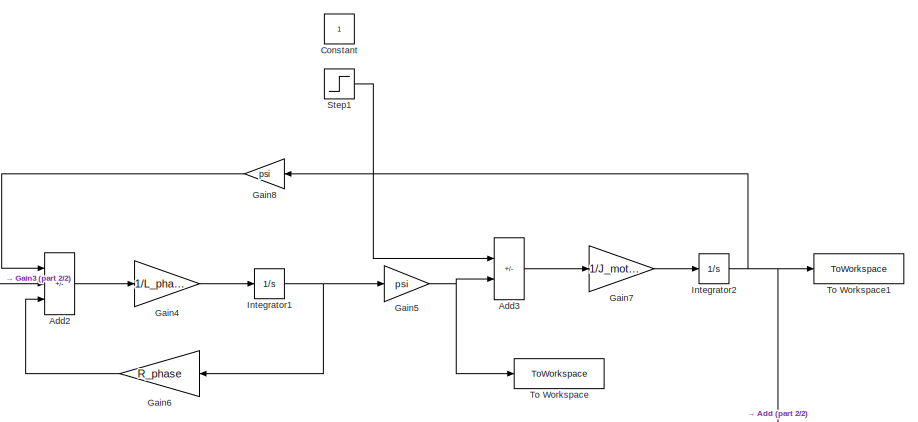
[diagram: root canvas - part 1/2, right side, full height]
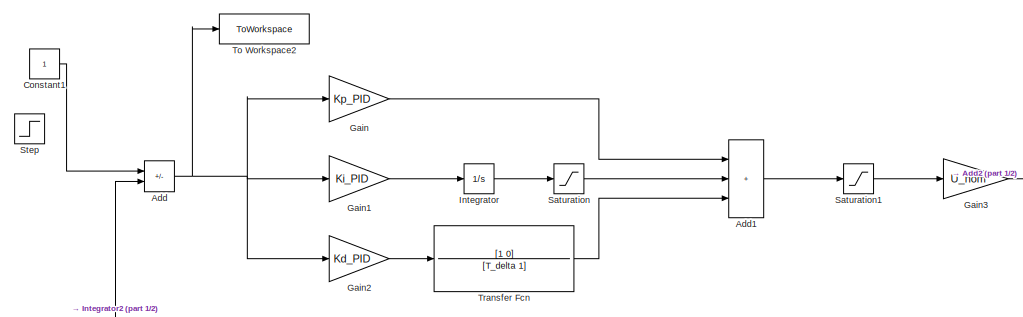
[diagram: root canvas - part 2/2, middle left region]
MODEL slx_756427c6e6b8
KIND model
CONFIG AbsTol = auto
CONFIG EnableMultiTasking = off
CONFIG FixedStep = 0.000001
CONFIG MaxStep = auto
CONFIG MinStep = auto
CONFIG RelTol = 1e-3
CONFIG SampleTimeConstraint = Unconstrained
CONFIG SolverName = FixedStepAuto
CONFIG StartTime = 0.0
CONFIG StopTime = 1.2
BLOCK [Sum] Add
  IconShape = rectangular
  Inputs = +-
  Ports = [2, 1]
BLOCK [Sum] Add1
  IconShape = rectangular
  Inputs = +++
  Ports = [3, 1]
BLOCK [Sum] Add2
  IconShape = rectangular
  Inputs = -+-
  Ports = [3, 1]
BLOCK [Sum] Add3
  IconShape = rectangular
  Inputs = -+
  Ports = [2, 1]
BLOCK [Constant] Constant
BLOCK [Constant] Constant1
BLOCK [Gain] Gain
  Gain = Kp_PID
BLOCK [Gain] Gain1
  Gain = Ki_PID
BLOCK [Gain] Gain2
  Gain = Kd_PID
BLOCK [Gain] Gain3
  Gain = U_nom
BLOCK [Gain] Gain4
  Gain = 1/L_phase
BLOCK [Gain] Gain5
  Gain = psi
BLOCK [Gain] Gain6
  Gain = R_phase
  NameLocation = top
BLOCK [Gain] Gain7
  Gain = 1/J_motor
BLOCK [Gain] Gain8
  Gain = psi
  NameLocation = top
BLOCK [Integrator] Integrator
  Ports = [1, 1]
BLOCK [Integrator] Integrator1
  Ports = [1, 1]
BLOCK [Integrator] Integrator2
  Ports = [1, 1]
BLOCK [Saturate] Saturation
  LowerLimit = -1
  UpperLimit = 1
BLOCK [Saturate] Saturation1
  LowerLimit = -1
  UpperLimit = 1
BLOCK [Step] Step
  SampleTime = 0.00001
BLOCK [Step] Step1
  After = M_nom
  Before = 0.5 * M_nom
  SampleTime = 0
BLOCK [ToWorkspace] To Workspace
  FixptAsFi = on
  MaxDataPoints = inf
  Ports = [1]
  SampleTime = 0.00001
  SaveFormat = Timeseries
  VariableName = torque
BLOCK [ToWorkspace] To Workspace1
  FixptAsFi = on
  MaxDataPoints = inf
  Ports = [1]
  SampleTime = 0.00001
  SaveFormat = Timeseries
  VariableName = wmotor
BLOCK [ToWorkspace] To Workspace2
  FixptAsFi = on
  MaxDataPoints = inf
  Ports = [1]
  SampleTime = 0.00001
  SaveFormat = Timeseries
  VariableName = error
BLOCK [TransferFcn] Transfer Fcn
  Denominator = [T_delta 1]
  Numerator = [1 0]
LINE Add1:1 -> Saturation1:1
LINE Add2:1 -> Gain4:1
LINE Add3:1 -> Gain7:1
NET Add:1 -> Gain1:1, Gain2:1, Gain:1, To Workspace2:1
LINE Constant1:1 -> Add:1
LINE Gain1:1 -> Integrator:1
LINE Gain2:1 -> Transfer Fcn:1
LINE Gain3:1 -> Add2:2
LINE Gain4:1 -> Integrator1:1
NET Gain5:1 -> Add3:2, To Workspace:1
LINE Gain6:1 -> Add2:3
LINE Gain7:1 -> Integrator2:1
LINE Gain8:1 -> Add2:1
LINE Gain:1 -> Add1:1
NET Integrator1:1 -> Gain5:1, Gain6:1
NET Integrator2:1 -> Add:2, Gain8:1, To Workspace1:1
LINE Integrator:1 -> Saturation:1
LINE Saturation1:1 -> Gain3:1
LINE Saturation:1 -> Add1:2
LINE Step1:1 -> Add3:1
LINE Transfer Fcn:1 -> Add1:3
note: NET lines group one-source signal fan-out (src -> all destinations, sorted); 1:1 wires keep LINE
